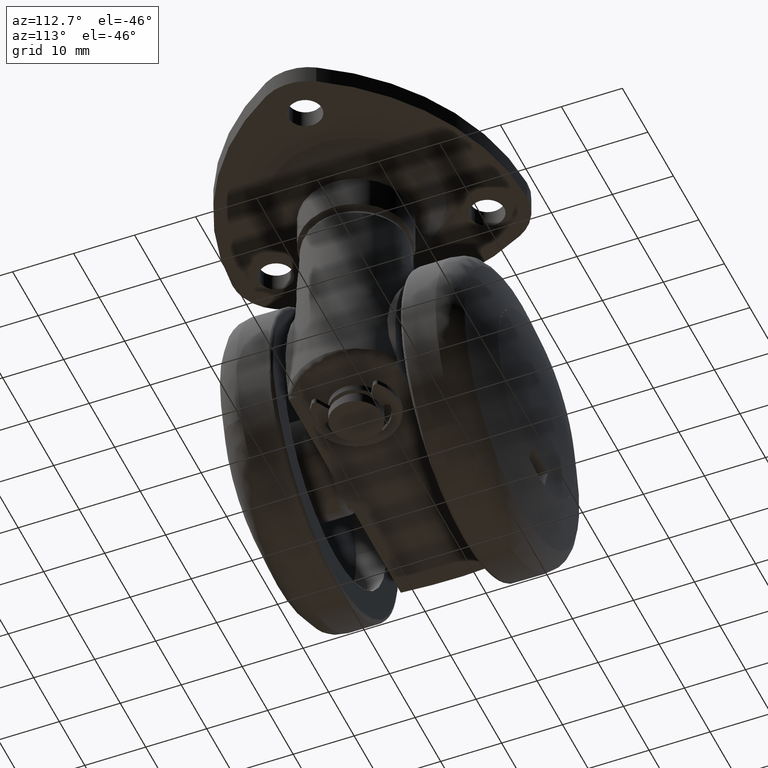
[diagram: clean part render]
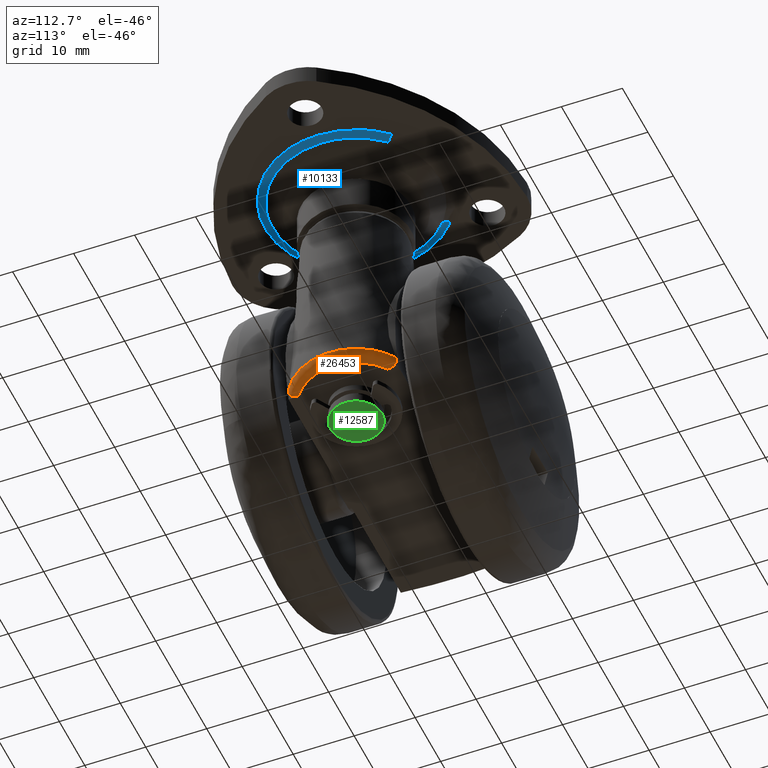
[diagram: same view with three faces highlighted in distinct colors, each labeled with its STEP entity id]
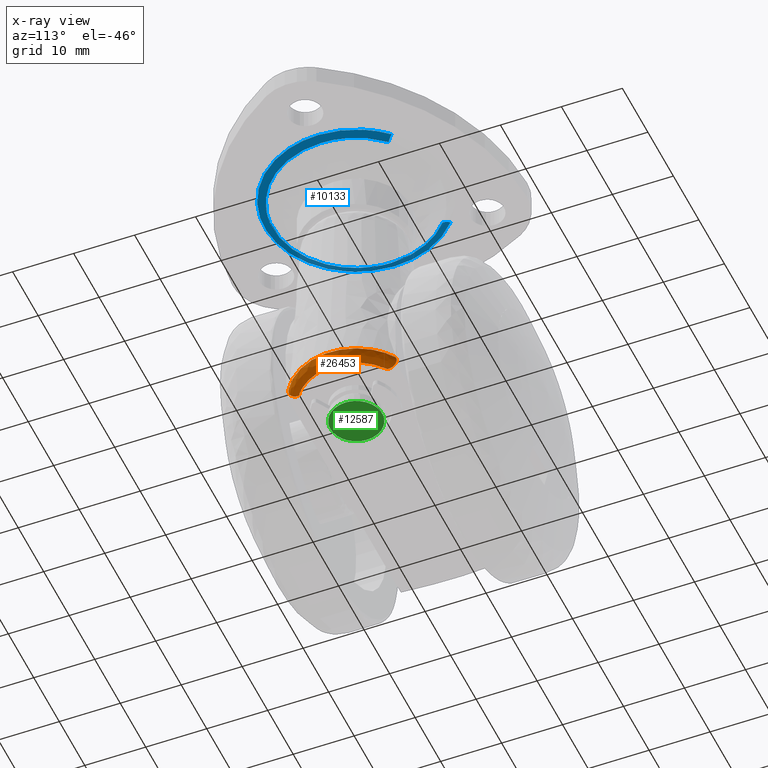
[diagram: x-ray of the same camera — body ghosted, the three highlighted faces saturated]
A machine part, auxiliary view with three faces highlighted in distinct colors.
The next image is the same camera in x-ray (body ghosted, the three faces saturated) — at least one of them is partly hidden behind the body in this view.
Their STEP definitions:

[orange] entity #26453 — the highlighted face is a freeform B-spline surface patch.
#26322=CARTESIAN_POINT('',(20.774800439144332,-7.951221303421848,-7.496149489147332));
#26323=CARTESIAN_POINT('',(25.801763378514199,-5.564697122170681,-7.496149489147330));
#26324=CARTESIAN_POINT('',(25.801763378514202,5.389348E-016,-7.496149489147332));
#26325=CARTESIAN_POINT('',(25.801763378514199,5.564697892870028,-7.496149489147332));
#26326=CARTESIAN_POINT('',(20.774799444331343,7.951221775703997,-7.496149489147331));
#26327=CARTESIAN_POINT('',(21.561030532042583,-9.607332550844767,-7.627760213959456));
#26328=CARTESIAN_POINT('',(27.635028831965901,-6.723733846323080,-7.627760213959455));
#26329=CARTESIAN_POINT('',(27.635028831965897,6.511862E-016,-7.627760213959454));
#26330=CARTESIAN_POINT('',(27.635028831965908,6.723734777546675,-7.627760213959457));
#26331=CARTESIAN_POINT('',(21.561029330026077,9.607333121495673,-7.627760213959456));
#26332=CARTESIAN_POINT('',(21.458726826246998,-9.391840522046223,-5.805322082496598));
#26333=CARTESIAN_POINT('',(27.396485622682512,-6.572920804307775,-5.805322082496598));
#26334=CARTESIAN_POINT('',(27.396485622682508,6.365801E-016,-5.805322082496598));
#26335=CARTESIAN_POINT('',(27.396485622682508,6.572921714644067,-5.805322082496598));
#26336=CARTESIAN_POINT('',(21.458725651191667,9.391841079897462,-5.805322082496597));
#26344=(BOUNDED_SURFACE()B_SPLINE_SURFACE(2,2,((#26322,#26327,#26332),(#26323,#26328,#26333),(#26324,#26329,#26334),(#26325,#26330,#26335),(#26326,#26331,#26336)),.UNSPECIFIED.,.F.,.F.,.U.)B_SPLINE_SURFACE_WITH_KNOTS((3,2,3),(3,3),(0.0,12.042466969881250,24.084935326913911),(0.0,2.847832734757460),.UNSPECIFIED.)GEOMETRIC_REPRESENTATION_ITEM()RATIONAL_B_SPLINE_SURFACE(((0.885919982673631,0.561240228558042,0.889383005553009),(0.761012616023819,0.482110013213357,0.763987381411582),(0.915012234979288,0.579670496135955,0.918588978214135),(0.761012598284863,0.482110001975530,0.763987363603286),(0.885920011449371,0.561240246787796,0.889383034441232)))REPRESENTATION_ITEM('')SURFACE());
#26345=CARTESIAN_POINT('',(22.505503267729800,8.830992259150358,-5.911916969862051));
#26346=VERTEX_POINT('',#26345);
#26347=CARTESIAN_POINT('',(22.160977493456350,7.262070286592310,-7.500000000000000));
#26348=VERTEX_POINT('',#26347);
#26349=CARTESIAN_POINT('',(22.505503267729800,8.830992259150358,-5.911916969862051));
#26350=CARTESIAN_POINT('',(22.475810848268772,8.856716467841885,-6.015973768633282));
#26351=CARTESIAN_POINT('',(22.446241524475131,8.869517916477392,-6.121073492810367));
#26352=CARTESIAN_POINT('',(22.402130933378320,8.867835075968861,-6.280421031283202));
#26353=CARTESIAN_POINT('',(22.387361854823510,8.863679737977423,-6.334221786009999));
#26354=CARTESIAN_POINT('',(22.358666881396040,8.848119672442296,-6.439776961553847));
#26355=CARTESIAN_POINT('',(22.344706195916569,8.836775344830590,-6.491649165812654));
#26356=CARTESIAN_POINT('',(22.317593036015928,8.806943850016273,-6.593587987682419));
#26357=CARTESIAN_POINT('',(22.304440358451860,8.788457613148175,-6.643654814414592));
#26358=CARTESIAN_POINT('',(22.285375233331010,8.755141090285900,-6.717351153534272));
#26359=CARTESIAN_POINT('',(22.279114342075609,8.743058498962929,-6.741749703339555));
#26360=CARTESIAN_POINT('',(22.267014036074240,8.717379772666430,-6.789328406238102));
#26361=CARTESIAN_POINT('',(22.261153184486759,8.703752756870838,-6.812590278244287));
#26362=CARTESIAN_POINT('',(22.244132689500798,8.660570461650504,-6.880836972811340));
#26363=CARTESIAN_POINT('',(22.233533438831170,8.628720794026293,-6.924287463224988));
#26364=CARTESIAN_POINT('',(22.218765517906480,8.576463766306054,-6.986474391927489));
#26365=CARTESIAN_POINT('',(22.214031798845259,8.558295890001880,-7.006704042336687));
#26366=CARTESIAN_POINT('',(22.204948739400951,8.520460384894316,-7.046164814794424));
#26367=CARTESIAN_POINT('',(22.200591909088150,8.500745375489998,-7.065432061569689));
#26368=CARTESIAN_POINT('',(22.180059448632701,8.399798304432853,-7.158026380370320));
#26369=CARTESIAN_POINT('',(22.167364637174689,8.310658253093282,-7.221261555737318));
#26370=CARTESIAN_POINT('',(22.153470351016342,8.165872959720927,-7.301835613874133));
#26371=CARTESIAN_POINT('',(22.149737586782901,8.115984376741913,-7.326122859510738));
#26372=CARTESIAN_POINT('',(22.144046372110221,8.014958270436082,-7.369237772527984));
#26373=CARTESIAN_POINT('',(22.142062739952269,7.963565430929916,-7.388209313439216));
#26374=CARTESIAN_POINT('',(22.139679465512089,7.859180878646130,-7.421454308495028));
#26375=CARTESIAN_POINT('',(22.139280357686680,7.806188536356052,-7.435725905714757));
#26376=CARTESIAN_POINT('',(22.139968466574409,7.698713607537729,-7.459891007442754));
#26377=CARTESIAN_POINT('',(22.141066659341220,7.643987638322903,-7.469809051600635));
#26378=CARTESIAN_POINT('',(22.146390107015240,7.480147780348464,-7.493021646628185));
#26379=CARTESIAN_POINT('',(22.152599872514159,7.371054816520223,-7.500000000000009));
#26380=CARTESIAN_POINT('',(22.160977493456340,7.262070286592310,-7.500000000000001));
#26381=B_SPLINE_CURVE_WITH_KNOTS('',3,(#26349,#26350,#26351,#26352,#26353,#26354,#26355,#26356,#26357,#26358,#26359,#26360,#26361,#26362,#26363,#26364,#26365,#26366,#26367,#26368,#26369,#26370,#26371,#26372,#26373,#26374,#26375,#26376,#26377,#26378,#26379,#26380),.UNSPECIFIED.,.F.,.U.,(4,2,2,2,2,2,2,2,2,2,2,2,2,2,2,4),(0.0,0.124999999999998,0.187499999999998,0.249999999999997,0.312499999999996,0.343749999999996,0.374999999999996,0.437499999999997,0.468749999999997,0.499999999999998,0.624999999999998,0.687499999999998,0.749999999999998,0.812499999999999,0.874999999999999,1.0),.UNSPECIFIED.);
#26382=EDGE_CURVE('',#26346,#26348,#26381,.T.);
#26383=ORIENTED_EDGE('',*,*,#26382,.F.);
#26384=CARTESIAN_POINT('',(22.505503267729750,-8.830992259150380,-5.911916969862150));
#26385=VERTEX_POINT('',#26384);
#26386=CARTESIAN_POINT('',(22.505503267729750,-8.830992259150380,-5.911916969862150));
#26387=CARTESIAN_POINT('',(27.406583998227077,-5.775512740503760,-5.911916969862040));
#26388=CARTESIAN_POINT('',(27.406583998227081,0.0,-5.911916969862040));
#26389=CARTESIAN_POINT('',(27.406583998227077,5.775512740503721,-5.911916969862040));
#26390=CARTESIAN_POINT('',(22.505503267729800,8.830992259150358,-5.911916969862051));
#26398=(BOUNDED_CURVE()B_SPLINE_CURVE(2,(#26386,#26387,#26388,#26389,#26390),.UNSPECIFIED.,.F.,.U.)B_SPLINE_CURVE_WITH_KNOTS((3,2,3),(0.0,0.500000000000000,1.0),.UNSPECIFIED.)CURVE()GEOMETRIC_REPRESENTATION_ITEM()RATIONAL_B_SPLINE_CURVE((1.0,0.874368455238417,1.0,0.874368455238417,1.0))REPRESENTATION_ITEM(''));
#26399=EDGE_CURVE('',#26385,#26346,#26398,.T.);
#26400=ORIENTED_EDGE('',*,*,#26399,.F.);
#26401=CARTESIAN_POINT('',(22.160977493456301,-7.262070286592670,-7.500000000000000));
#26402=VERTEX_POINT('',#26401);
#26403=CARTESIAN_POINT('',(22.160977493456301,-7.262070286592670,-7.500000000000001));
#26404=CARTESIAN_POINT('',(22.152576542314190,-7.371358319256227,-7.499999999999999));
#26405=CARTESIAN_POINT('',(22.146374776402759,-7.480527856030308,-7.492977292545448));
#26406=CARTESIAN_POINT('',(22.141065452683200,-7.644070768145537,-7.469792514737232));
#26407=CARTESIAN_POINT('',(22.139966472128322,-7.698784657575547,-7.459879948015277));
#26408=CARTESIAN_POINT('',(22.139280209474538,-7.806452895839369,-7.435661534959130));
#26409=CARTESIAN_POINT('',(22.139683298331491,-7.859501444971990,-7.421363421540644));
#26410=CARTESIAN_POINT('',(22.142074314666282,-7.963918707507288,-7.388085518449705));
#26411=CARTESIAN_POINT('',(22.144061743986189,-8.015288037899612,-7.369107456001468));
#26412=CARTESIAN_POINT('',(22.149752285476609,-8.116188097502807,-7.326025444031704));
#26413=CARTESIAN_POINT('',(22.153469367387292,-8.165870983351409,-7.301839331731417));
#26414=CARTESIAN_POINT('',(22.167382420062900,-8.310826998357863,-7.221162407329034));
#26415=CARTESIAN_POINT('',(22.180070166006480,-8.399746261402004,-7.158001422828420));
#26416=CARTESIAN_POINT('',(22.204549429991619,-8.520254286441734,-7.047573421955418));
#26417=CARTESIAN_POINT('',(22.213706565124120,-8.558519216536078,-7.007786400349615));
#26418=CARTESIAN_POINT('',(22.233446923725229,-8.628457363337596,-6.924642847407116));
#26419=CARTESIAN_POINT('',(22.244034752839120,-8.660273813849871,-6.881238906824844));
#26420=CARTESIAN_POINT('',(22.266595669374482,-8.717608234425073,-6.790758563535632));
#26421=CARTESIAN_POINT('',(22.278568603870841,-8.743127264503380,-6.743682798846735));
#26422=CARTESIAN_POINT('',(22.297569628648201,-8.776507097616497,-6.670203954117933));
#26423=CARTESIAN_POINT('',(22.304105365057911,-8.786852018550302,-6.645126031100845));
#26424=CARTESIAN_POINT('',(22.317365001843360,-8.805625403529843,-6.594609577529950));
#26425=CARTESIAN_POINT('',(22.324086819104242,-8.814062903666175,-6.569176927365771));
#26426=CARTESIAN_POINT('',(22.344512614403339,-8.836612515236258,-6.492369264622484));
#26427=CARTESIAN_POINT('',(22.358475784082842,-8.847970829830476,-6.440486137668548));
#26428=CARTESIAN_POINT('',(22.387041456198851,-8.863550415679748,-6.335394270819312));
#26429=CARTESIAN_POINT('',(22.401723719077740,-8.867769431210471,-6.281898352590354));
#26430=CARTESIAN_POINT('',(22.446132384498551,-8.869612424469949,-6.121455394184258));
#26431=CARTESIAN_POINT('',(22.475802425598321,-8.856723764872500,-6.016003285801149));
#26432=CARTESIAN_POINT('',(22.505503267729750,-8.830992259150380,-5.911916969862150));
#26433=B_SPLINE_CURVE_WITH_KNOTS('',3,(#26403,#26404,#26405,#26406,#26407,#26408,#26409,#26410,#26411,#26412,#26413,#26414,#26415,#26416,#26417,#26418,#26419,#26420,#26421,#26422,#26423,#26424,#26425,#26426,#26427,#26428,#26429,#26430,#26431,#26432),.UNSPECIFIED.,.F.,.U.,(4,2,2,2,2,2,2,2,2,2,2,2,2,2,4),(0.0,0.125000000000001,0.187500000000002,0.250000000000002,0.312500000000003,0.375000000000004,0.500000000000004,0.562500000000004,0.625000000000004,0.687500000000004,0.718750000000004,0.750000000000003,0.812500000000003,0.875000000000002,1.0),.UNSPECIFIED.);
#26434=EDGE_CURVE('',#26402,#26385,#26433,.T.);
#26435=ORIENTED_EDGE('',*,*,#26434,.F.);
#26436=CARTESIAN_POINT('',(22.160977493456350,7.262070286592310,-7.500000000000000));
#26437=CARTESIAN_POINT('',(25.909172438300512,4.598318906060981,-7.500000000000001));
#26438=CARTESIAN_POINT('',(25.909172438300509,0.0,-7.500000000000000));
#26439=CARTESIAN_POINT('',(25.909172438300512,-4.598318906061142,-7.500000000000001));
#26440=CARTESIAN_POINT('',(22.160977493456301,-7.262070286592670,-7.500000000000000));
#26448=(BOUNDED_CURVE()B_SPLINE_CURVE(2,(#26436,#26437,#26438,#26439,#26440),.UNSPECIFIED.,.F.,.U.)B_SPLINE_CURVE_WITH_KNOTS((3,2,3),(0.0,0.500000000000000,1.0),.UNSPECIFIED.)CURVE()GEOMETRIC_REPRESENTATION_ITEM()RATIONAL_B_SPLINE_CURVE((1.0,0.888619179097431,1.0,0.888619179097431,1.0))REPRESENTATION_ITEM(''));
#26449=EDGE_CURVE('',#26348,#26402,#26448,.T.);
#26450=ORIENTED_EDGE('',*,*,#26449,.F.);
#26451=EDGE_LOOP('',(#26383,#26400,#26435,#26450));
#26452=FACE_OUTER_BOUND('',#26451,.T.);
#26453=ADVANCED_FACE('',(#26452),#26344,.T.);

[blue] entity #10133 — the highlighted face is a freeform B-spline surface patch.
#8569=CARTESIAN_POINT('',(18.074235722936152,-13.649459027250510,36.529822727381827));
#8570=VERTEX_POINT('',#8569);
#8576=CARTESIAN_POINT('',(4.268607065961805,-5.037196450454439,36.529822727268837));
#8577=VERTEX_POINT('',#8576);
#8578=CARTESIAN_POINT('',(18.074235722936148,-13.649459027250519,36.529822727381827));
#8579=CARTESIAN_POINT('',(17.537947017153705,-13.691665863629860,36.529822727266954));
#8580=CARTESIAN_POINT('',(17.0,-13.691665863629860,36.529822727266946));
#8581=CARTESIAN_POINT('',(7.692762053144551,-13.691665863629868,36.529822727266954));
#8582=CARTESIAN_POINT('',(4.268607065961805,-5.037196450454440,36.529822727268844));
#8590=(BOUNDED_CURVE()B_SPLINE_CURVE(2,(#8578,#8579,#8580,#8581,#8582),.UNSPECIFIED.,.F.,.U.)B_SPLINE_CURVE_WITH_KNOTS((3,2,3),(0.236331300626306,0.250000000000000,0.437532549938905),.UNSPECIFIED.)CURVE()GEOMETRIC_REPRESENTATION_ITEM()RATIONAL_B_SPLINE_CURVE((0.969723356158331,0.983986122573781,1.0,0.780291951264399,0.890203187500705))REPRESENTATION_ITEM(''));
#8591=EDGE_CURVE('',#8570,#8577,#8590,.T.);
#8643=CARTESIAN_POINT('',(3.308334136370140,0.0,36.529822727266946));
#8644=VERTEX_POINT('',#8643);
#8645=CARTESIAN_POINT('',(4.268607065961805,-5.037196450454438,36.529822727268844));
#8646=CARTESIAN_POINT('',(3.308334136370141,-2.610129705933102,36.529822727266954));
#8647=CARTESIAN_POINT('',(3.308334136370140,0.0,36.529822727266946));
#8655=(BOUNDED_CURVE()B_SPLINE_CURVE(2,(#8645,#8646,#8647),.UNSPECIFIED.,.F.,.U.)B_SPLINE_CURVE_WITH_KNOTS((3,3),(0.437532549938905,0.500000000000000),.UNSPECIFIED.)CURVE()GEOMETRIC_REPRESENTATION_ITEM()RATIONAL_B_SPLINE_CURVE((0.890203187500705,0.926814829922149,1.0))REPRESENTATION_ITEM(''));
#8656=EDGE_CURVE('',#8577,#8644,#8655,.T.);
#8658=CARTESIAN_POINT('',(8.140725978357811,10.439108101853609,36.529822728233903));
#8659=VERTEX_POINT('',#8658);
#8660=CARTESIAN_POINT('',(3.308334136370140,0.0,36.529822727266946));
#8661=CARTESIAN_POINT('',(3.308334136370140,6.338040931526307,36.529822727266954));
#8662=CARTESIAN_POINT('',(8.140725978357811,10.439108101853609,36.529822728233903));
#8670=(BOUNDED_CURVE()B_SPLINE_CURVE(2,(#8660,#8661,#8662),.UNSPECIFIED.,.F.,.U.)B_SPLINE_CURVE_WITH_KNOTS((3,3),(0.500000000000000,0.637331629833199),.UNSPECIFIED.)CURVE()GEOMETRIC_REPRESENTATION_ITEM()RATIONAL_B_SPLINE_CURVE((1.0,0.839105987573027,0.854978670802048))REPRESENTATION_ITEM(''));
#8671=EDGE_CURVE('',#8644,#8659,#8670,.T.);
#8673=CARTESIAN_POINT('',(26.915338952214238,9.441809551015936,36.529822727687197));
#8674=VERTEX_POINT('',#8673);
#8690=CARTESIAN_POINT('',(30.691665863629861,0.0,36.529822727266946));
#8691=VERTEX_POINT('',#8690);
#8692=CARTESIAN_POINT('',(26.915338952214238,9.441809551015938,36.529822727687211));
#8693=CARTESIAN_POINT('',(30.691665863629858,5.476090784337497,36.529822727266954));
#8694=CARTESIAN_POINT('',(30.691665863629861,0.0,36.529822727266946));
#8702=(BOUNDED_CURVE()B_SPLINE_CURVE(2,(#8692,#8693,#8694),.UNSPECIFIED.,.F.,.U.)B_SPLINE_CURVE_WITH_KNOTS((3,3),(0.878690594339490,1.0),.UNSPECIFIED.)CURVE()GEOMETRIC_REPRESENTATION_ITEM()RATIONAL_B_SPLINE_CURVE((0.853681049734260,0.857877190814986,1.0))REPRESENTATION_ITEM(''));
#8703=EDGE_CURVE('',#8674,#8691,#8702,.T.);
#8705=CARTESIAN_POINT('',(30.691665863629861,0.0,36.529822727266946));
#8706=CARTESIAN_POINT('',(30.691665863629854,-12.656445738822175,36.529822727266961));
#8707=CARTESIAN_POINT('',(18.074235722936145,-13.649459027250515,36.529822727381827));
#8715=(BOUNDED_CURVE()B_SPLINE_CURVE(2,(#8705,#8706,#8707),.UNSPECIFIED.,.F.,.U.)B_SPLINE_CURVE_WITH_KNOTS((3,3),(0.0,0.236331300626306),.UNSPECIFIED.)CURVE()GEOMETRIC_REPRESENTATION_ITEM()RATIONAL_B_SPLINE_CURVE((1.0,0.723120658612767,0.969723356158331))REPRESENTATION_ITEM(''));
#8716=EDGE_CURVE('',#8691,#8570,#8715,.T.);
#10016=CARTESIAN_POINT('',(26.878093039455841,9.406341361416105,36.484990105283664));
#10017=CARTESIAN_POINT('',(27.147298228204171,9.123634855349000,36.484990105283664));
#10018=CARTESIAN_POINT('',(27.399894159142111,8.825994639828142,36.484990105283671));
#10019=CARTESIAN_POINT('',(36.225888798970267,-1.573899519313966,36.484990105283678));
#10020=CARTESIAN_POINT('',(25.825994639828139,-10.399894159142109,36.484990105283671));
#10021=CARTESIAN_POINT('',(15.426100480686028,-19.225888798970256,36.484990105283678));
#10022=CARTESIAN_POINT('',(6.600105840857895,-8.825994639828148,36.484990105283671));
#10023=CARTESIAN_POINT('',(-2.225888798970249,1.573899519313974,36.484990105283678));
#10024=CARTESIAN_POINT('',(8.174005360171851,10.399894159142104,36.484990105283671));
#10025=CARTESIAN_POINT('',(27.312735013036480,9.820225980357128,37.026448846748337));
#10026=CARTESIAN_POINT('',(27.593785390331679,9.525080219744606,37.026448846748345));
#10027=CARTESIAN_POINT('',(27.857495692586298,9.214343657573213,37.026448846748352));
#10028=CARTESIAN_POINT('',(37.071839350159522,-1.643152035013083,37.026448846748352));
#10029=CARTESIAN_POINT('',(26.214343657573210,-10.857495692586296,37.026448846748352));
#10030=CARTESIAN_POINT('',(15.356847964986919,-20.071839350159514,37.026448846748352));
#10031=CARTESIAN_POINT('',(6.142504307413709,-9.214343657573219,37.026448846748352));
#10032=CARTESIAN_POINT('',(-3.071839350159508,1.643152035013089,37.026448846748352));
#10033=CARTESIAN_POINT('',(7.785656342426782,10.857495692586291,37.026448846748352));
#10034=CARTESIAN_POINT('',(27.897773568429304,10.377324636912983,36.998832415587209));
#10035=CARTESIAN_POINT('',(28.194767854543787,10.065435340351872,36.998832415587216));
#10036=CARTESIAN_POINT('',(28.473438368039965,9.737070780446540,36.998832415587195));
#10037=CARTESIAN_POINT('',(38.210509148486530,-1.736367587593424,36.998832415587216));
#10038=CARTESIAN_POINT('',(26.737070780446540,-11.473438368039961,36.998832415587195));
#10039=CARTESIAN_POINT('',(15.263632412406576,-21.210509148486508,36.998832415587216));
#10040=CARTESIAN_POINT('',(5.526561631960038,-9.737070780446548,36.998832415587195));
#10041=CARTESIAN_POINT('',(-4.210509148486509,1.736367587593431,36.998832415587216));
#10042=CARTESIAN_POINT('',(7.262929219553451,11.473438368039961,36.998832415587195));
#10050=(BOUNDED_SURFACE()B_SPLINE_SURFACE(2,2,((#10016,#10025,#10034),(#10017,#10026,#10035),(#10018,#10027,#10036),(#10019,#10028,#10037),(#10020,#10029,#10038),(#10021,#10030,#10039),(#10022,#10031,#10040),(#10023,#10032,#10041),(#10024,#10033,#10042)),.UNSPECIFIED.,.F.,.F.,.U.)B_SPLINE_SURFACE_WITH_KNOTS((3,2,2,2,3),(3,3),(0.0,0.997310444402441,25.930095332220059,50.862880220037667,75.795665107855285),(0.0,1.555531109847031),.UNSPECIFIED.)GEOMETRIC_REPRESENTATION_ITEM()RATIONAL_B_SPLINE_SURFACE(((0.914206183657567,0.846881341524912,0.912663313512510),(0.924286671714550,0.856219472683431,0.922726789122686),(0.935243723041753,0.866369614405306,0.933665348661413),(0.661317178624977,0.612615829359966,0.660201099397388),(0.935243723041753,0.866369614405306,0.933665348661413),(0.661317178624977,0.612615829359966,0.660201099397388),(0.935243723041753,0.866369614405306,0.933665348661413),(0.661317178624977,0.612615829359966,0.660201099397388),(0.935243723041753,0.866369614405306,0.933665348661413)))REPRESENTATION_ITEM('')SURFACE());
#10051=ORIENTED_EDGE('',*,*,#8703,.F.);
#10052=CARTESIAN_POINT('',(27.848289311339791,10.330204759081839,37.0));
#10053=VERTEX_POINT('',#10052);
#10054=CARTESIAN_POINT('',(26.915338952214242,9.441809551015936,36.529822727687204));
#10055=CARTESIAN_POINT('',(27.319678992136097,9.826839419297908,36.999999998995783));
#10056=CARTESIAN_POINT('',(27.848289311339787,10.330204759081841,37.0));
#10064=(BOUNDED_CURVE()B_SPLINE_CURVE(2,(#10054,#10055,#10056),.UNSPECIFIED.,.F.,.U.)B_SPLINE_CURVE_WITH_KNOTS((3,3),(-1.538326539527042,-0.475227345700058),.UNSPECIFIED.)CURVE()GEOMETRIC_REPRESENTATION_ITEM()RATIONAL_B_SPLINE_CURVE((0.908365794591549,0.852651639116559,0.906963033974366))REPRESENTATION_ITEM(''));
#10065=EDGE_CURVE('',#8674,#10053,#10064,.T.);
#10066=ORIENTED_EDGE('',*,*,#10065,.T.);
#10067=CARTESIAN_POINT('',(31.979936962093799,0.0,37.0));
#10068=VERTEX_POINT('',#10067);
#10069=CARTESIAN_POINT('',(31.979936962093799,0.0,37.0));
#10070=CARTESIAN_POINT('',(31.979936962093799,5.991345068249089,36.999999999999993));
#10071=CARTESIAN_POINT('',(27.848289311339794,10.330204759081841,37.0));
#10079=(BOUNDED_CURVE()B_SPLINE_CURVE(2,(#10069,#10070,#10071),.UNSPECIFIED.,.F.,.U.)B_SPLINE_CURVE_WITH_KNOTS((3,3),(0.500000000000000,0.621309405660630),.UNSPECIFIED.)CURVE()GEOMETRIC_REPRESENTATION_ITEM()RATIONAL_B_SPLINE_CURVE((1.0,0.857877190814845,0.853681049734252))REPRESENTATION_ITEM(''));
#10080=EDGE_CURVE('',#10068,#10053,#10079,.T.);
#10081=ORIENTED_EDGE('',*,*,#10080,.F.);
#10082=CARTESIAN_POINT('',(2.020063037906200,0.0,37.0));
#10083=VERTEX_POINT('',#10082);
#10084=CARTESIAN_POINT('',(2.020063037906200,0.0,37.0));
#10085=CARTESIAN_POINT('',(2.020063037906200,-14.979936962093808,37.000000000000007));
#10086=CARTESIAN_POINT('',(17.0,-14.979936962093801,37.0));
#10087=CARTESIAN_POINT('',(31.979936962093799,-14.979936962093808,37.000000000000007));
#10088=CARTESIAN_POINT('',(31.979936962093799,0.0,37.0));
#10096=(BOUNDED_CURVE()B_SPLINE_CURVE(2,(#10084,#10085,#10086,#10087,#10088),.UNSPECIFIED.,.F.,.U.)B_SPLINE_CURVE_WITH_KNOTS((3,2,3),(0.0,0.250000000000000,0.500000000000000),.UNSPECIFIED.)CURVE()GEOMETRIC_REPRESENTATION_ITEM()RATIONAL_B_SPLINE_CURVE((1.0,0.707106781186547,1.0,0.707106781186547,1.0))REPRESENTATION_ITEM(''));
#10097=EDGE_CURVE('',#10083,#10068,#10096,.T.);
#10098=ORIENTED_EDGE('',*,*,#10097,.F.);
#10099=CARTESIAN_POINT('',(7.307142485153184,11.421340751661161,37.0));
#10100=VERTEX_POINT('',#10099);
#10101=CARTESIAN_POINT('',(7.307142485153184,11.421340751661162,37.000000000000007));
#10102=CARTESIAN_POINT('',(2.020063037906200,6.934397505992243,37.0));
#10103=CARTESIAN_POINT('',(2.020063037906200,0.0,37.0));
#10111=(BOUNDED_CURVE()B_SPLINE_CURVE(2,(#10101,#10102,#10103),.UNSPECIFIED.,.F.,.U.)B_SPLINE_CURVE_WITH_KNOTS((3,3),(0.862668370166558,1.0),.UNSPECIFIED.)CURVE()GEOMETRIC_REPRESENTATION_ITEM()RATIONAL_B_SPLINE_CURVE((0.854978670802104,0.839105987572743,1.0))REPRESENTATION_ITEM(''));
#10112=EDGE_CURVE('',#10100,#10083,#10111,.T.);
#10113=ORIENTED_EDGE('',*,*,#10112,.F.);
#10114=CARTESIAN_POINT('',(8.140725978357811,10.439108101853609,36.529822728233903));
#10115=CARTESIAN_POINT('',(7.779451468786204,10.864807053148622,36.999999999521840));
#10116=CARTESIAN_POINT('',(7.307142485153184,11.421340751661161,37.0));
#10124=(BOUNDED_CURVE()B_SPLINE_CURVE(2,(#10114,#10115,#10116),.UNSPECIFIED.,.F.,.U.)B_SPLINE_CURVE_WITH_KNOTS((3,3),(-1.538326538210173,-0.475227344583548),.UNSPECIFIED.)CURVE()GEOMETRIC_REPRESENTATION_ITEM()RATIONAL_B_SPLINE_CURVE((0.929268955452372,0.872272715345274,0.927833915001528))REPRESENTATION_ITEM(''));
#10125=EDGE_CURVE('',#8659,#10100,#10124,.T.);
#10126=ORIENTED_EDGE('',*,*,#10125,.F.);
#10127=ORIENTED_EDGE('',*,*,#8671,.F.);
#10128=ORIENTED_EDGE('',*,*,#8656,.F.);
#10129=ORIENTED_EDGE('',*,*,#8591,.F.);
#10130=ORIENTED_EDGE('',*,*,#8716,.F.);
#10131=EDGE_LOOP('',(#10051,#10066,#10081,#10098,#10113,#10126,#10127,#10128,#10129,#10130));
#10132=FACE_OUTER_BOUND('',#10131,.T.);
#10133=ADVANCED_FACE('',(#10132),#10050,.F.);

[green] entity #12587 — the highlighted face is a freeform B-spline surface patch.
#10767=CARTESIAN_POINT('',(16.498354502571740,4.220290487029294,-11.0));
#10768=VERTEX_POINT('',#10767);
#10769=CARTESIAN_POINT('',(21.250000000000000,0.0,-11.0));
#10770=VERTEX_POINT('',#10769);
#10771=CARTESIAN_POINT('',(16.498354502571740,4.220290487029294,-11.000000000000005));
#10772=CARTESIAN_POINT('',(16.748297491340900,4.250000000000000,-11.000000000000004));
#10773=CARTESIAN_POINT('',(17.0,4.250000000000000,-11.0));
#10774=CARTESIAN_POINT('',(21.250000000000007,4.249999999999999,-11.0));
#10775=CARTESIAN_POINT('',(21.250000000000000,0.0,-11.0));
#10783=(BOUNDED_CURVE()B_SPLINE_CURVE(2,(#10771,#10772,#10773,#10774,#10775),.UNSPECIFIED.,.F.,.U.)B_SPLINE_CURVE_WITH_KNOTS((3,2,3),(0.229562473504669,0.250000000000000,0.500000000000000),.UNSPECIFIED.)CURVE()GEOMETRIC_REPRESENTATION_ITEM()RATIONAL_B_SPLINE_CURVE((0.956026754166373,0.976055948320789,1.0,0.707106781186548,1.0))REPRESENTATION_ITEM(''));
#10784=EDGE_CURVE('',#10768,#10770,#10783,.T.);
#10825=CARTESIAN_POINT('',(17.259449327781549,-4.242073319293881,-11.000000000000540));
#10826=VERTEX_POINT('',#10825);
#10832=CARTESIAN_POINT('',(21.250000000000000,0.0,-11.0));
#10833=CARTESIAN_POINT('',(21.249999999999996,-3.998007361109719,-11.0));
#10834=CARTESIAN_POINT('',(17.259449327781542,-4.242073319293881,-11.000000000000542));
#10842=(BOUNDED_CURVE()B_SPLINE_CURVE(2,(#10832,#10833,#10834),.UNSPECIFIED.,.F.,.U.)B_SPLINE_CURVE_WITH_KNOTS((3,3),(0.500000000000000,0.739333245554010),.UNSPECIFIED.)CURVE()GEOMETRIC_REPRESENTATION_ITEM()RATIONAL_B_SPLINE_CURVE((1.0,0.719603661362463,0.976072648865589))REPRESENTATION_ITEM(''));
#10843=EDGE_CURVE('',#10770,#10826,#10842,.T.);
#10866=CARTESIAN_POINT('',(12.750000000000000,0.0,-11.0));
#10867=VERTEX_POINT('',#10866);
#10868=CARTESIAN_POINT('',(12.750000000000000,0.0,-11.0));
#10869=CARTESIAN_POINT('',(12.750000000000004,3.774741735046444,-11.0));
#10870=CARTESIAN_POINT('',(16.498354502571743,4.220290487029294,-11.000000000000007));
#10878=(BOUNDED_CURVE()B_SPLINE_CURVE(2,(#10868,#10869,#10870),.UNSPECIFIED.,.F.,.U.)B_SPLINE_CURVE_WITH_KNOTS((3,3),(0.0,0.229562473504669),.UNSPECIFIED.)CURVE()GEOMETRIC_REPRESENTATION_ITEM()RATIONAL_B_SPLINE_CURVE((1.0,0.731050832865759,0.956026754166373))REPRESENTATION_ITEM(''));
#10879=EDGE_CURVE('',#10867,#10768,#10878,.T.);
#10881=CARTESIAN_POINT('',(17.259449327781549,-4.242073319293881,-11.000000000000540));
#10882=CARTESIAN_POINT('',(17.129845751633713,-4.250000000000000,-11.000000000000005));
#10883=CARTESIAN_POINT('',(17.0,-4.250000000000000,-11.0));
#10884=CARTESIAN_POINT('',(12.750000000000002,-4.249999999999999,-11.0));
#10885=CARTESIAN_POINT('',(12.750000000000000,0.0,-11.0));
#10893=(BOUNDED_CURVE()B_SPLINE_CURVE(2,(#10881,#10882,#10883,#10884,#10885),.UNSPECIFIED.,.F.,.U.)B_SPLINE_CURVE_WITH_KNOTS((3,2,3),(0.739333245554010,0.750000000000000,1.0),.UNSPECIFIED.)CURVE()GEOMETRIC_REPRESENTATION_ITEM()RATIONAL_B_SPLINE_CURVE((0.976072648865589,0.987503119824085,1.0,0.707106781186548,1.0))REPRESENTATION_ITEM(''));
#10894=EDGE_CURVE('',#10826,#10867,#10893,.T.);
#12576=CARTESIAN_POINT('',(12.325425016474650,-4.674471941262461,-11.0));
#12577=CARTESIAN_POINT('',(21.674575211513119,-4.674471941262461,-11.0));
#12578=CARTESIAN_POINT('',(12.325425016474650,4.674497703880048,-11.0));
#12579=CARTESIAN_POINT('',(21.674575211513119,4.674497703880048,-11.0));
#12580=B_SPLINE_SURFACE_WITH_KNOTS('',1,1,((#12576,#12578),(#12577,#12579)),.UNSPECIFIED.,.F.,.F.,.U.,(2,2),(2,2),(0.0,9.349150195038469),(0.0,9.348969645142510),.UNSPECIFIED.);
#12581=ORIENTED_EDGE('',*,*,#10879,.T.);
#12582=ORIENTED_EDGE('',*,*,#10784,.T.);
#12583=ORIENTED_EDGE('',*,*,#10843,.T.);
#12584=ORIENTED_EDGE('',*,*,#10894,.T.);
#12585=EDGE_LOOP('',(#12581,#12582,#12583,#12584));
#12586=FACE_OUTER_BOUND('',#12585,.T.);
#12587=ADVANCED_FACE('',(#12586),#12580,.F.);